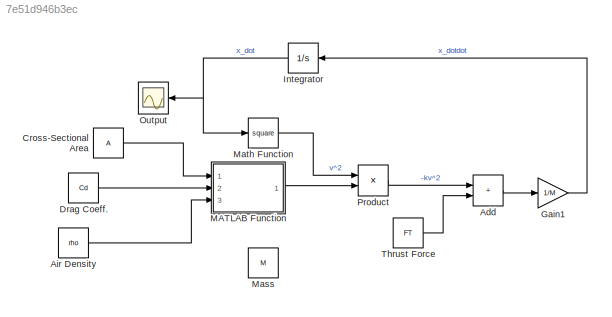
MODEL slx_7e51d946b3ec
KIND model
CONFIG AbsTol = auto
CONFIG EnableMultiTasking = off
CONFIG FixedStep = auto
CONFIG MaxStep = auto
CONFIG MinStep = auto
CONFIG RelTol = 1e-3
CONFIG SampleTimeConstraint = Unconstrained
CONFIG SolverName = VariableStepAuto
CONFIG StartTime = 0.0
CONFIG StopTime = 10.0
WORKSPACE source: mxarray member
WORKSPACE A = 10
WORKSPACE Cd = 0.5
WORKSPACE FT = 1000
WORKSPACE k1 = 10
WORKSPACE rho = 1.293
BLOCK [Sum] Add
  IconShape = rectangular
  Ports = [2, 1]
BLOCK [Constant] Air Density
  Value = rho
BLOCK [Constant] Cross-Sectional Area
  Value = A
BLOCK [Constant] Drag Coeff.
  Value = Cd
BLOCK [Gain] Gain1
  Gain = 1/M
BLOCK [Integrator] Integrator
  InitialCondition = 10
  Ports = [1, 1]
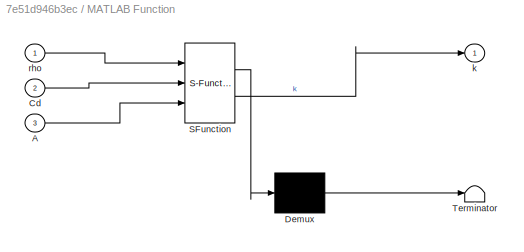
BLOCK [SubSystem] MATLAB Function
  ErrorFcn = Stateflow.Translate.translate
  PermitHierarchicalResolution = ExplicitOnly
  Ports = [3, 1]
  RequestExecContextInheritance = off
  SFBlockType = MATLAB Function
  TreatAsAtomicUnit = on
BLOCK [Demux] MATLAB Function/ Demux 
  Outputs = 1
  Ports = [1, 1]
BLOCK [S-Function] MATLAB Function/ SFunction 
  EnableBusSupport = on
  FunctionName = sf_sfun
  PortCounts = [3 2]
  Ports = [3, 2]
  SFcnIsStateOwnerBlock = off
  SFunctionDeploymentMode = off
  Tag = Stateflow S-Function 2
BLOCK [Terminator] MATLAB Function/ Terminator 
BLOCK [Inport] MATLAB Function/A
  Port = 3
BLOCK [Inport] MATLAB Function/Cd
  Port = 2
BLOCK [Outport] MATLAB Function/k
BLOCK [Inport] MATLAB Function/rho
BLOCK [Constant] Mass
  SampleTime = -1
  Value = M
BLOCK [Math] Math Function
  Operator = square
  Ports = [1, 1]
BLOCK [Scope] Output
  Floating = off
  NumInputPorts = 1
  Ports = [1]
  ScopeSpecificationString = Simulink.scopes.TimeScopeBlockCfg('CurrentConfiguration', extmgr.ConfigurationSet(extmgr.Configuration('Core','General UI',true),extmgr.Configuration('Core','Source UI',true),extmgr.Configuration('Sources','WiredSimulink',true),extmgr.Configuration('Visuals','Time Domain',true,'SerializedDisplays',{struct('MinYLimReal','9.05147','MaxYLimReal','18.5368','YLabelReal','','MinYLimMag','9.05147','MaxYL...<+1354ch>
BLOCK [Product] Product
  Ports = [2, 1]
BLOCK [Constant] Thrust Force
  Value = FT
LINE Add:1 -> Gain1:1
LINE Air Density:1 -> MATLAB Function:3
LINE Cross-Sectional Area:1 -> MATLAB Function:1
LINE Drag Coeff.:1 -> MATLAB Function:2
LINE Gain1:1 -> Integrator:1
NET Integrator:1 -> Math Function:1, Output:1
LINE MATLAB Function:1 -> Product:2
LINE Math Function:1 -> Product:1
LINE Product:1 -> Add:1
LINE Thrust Force:1 -> Add:2
note: NET lines group one-source signal fan-out (src -> all destinations, sorted); 1:1 wires keep LINE
CHART MATLAB Function states=1 transitions=1
  STATE_LABEL 'eML_blk_kernel()'
  STATE_LABEL 'SCRIPT:\nfunction k = fcn(rho, Cd, A)\n\nk = -0.5*rho*Cd*A;\n'
CHART  states=0 transitions=0
